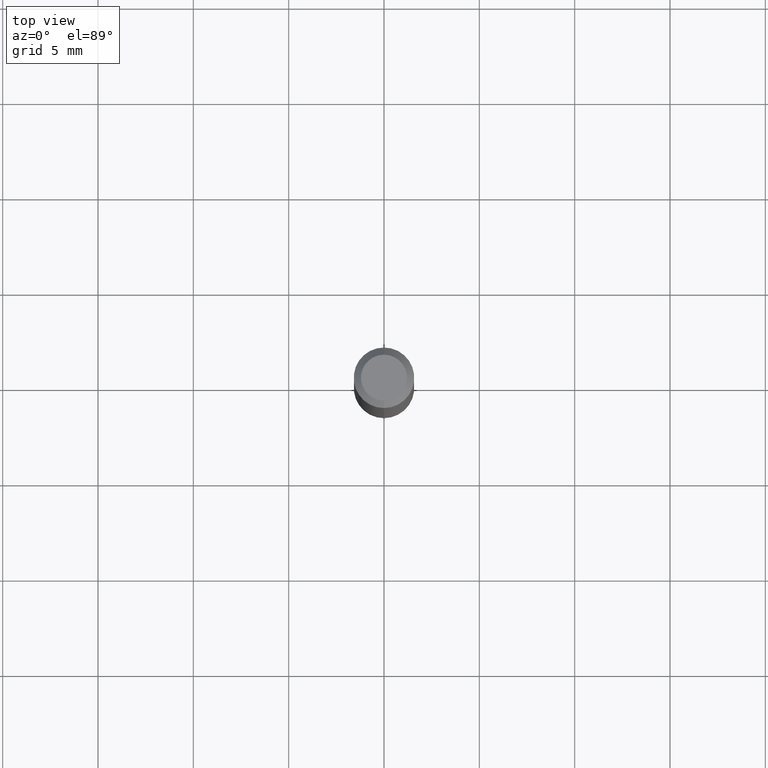
[diagram: clean part render]
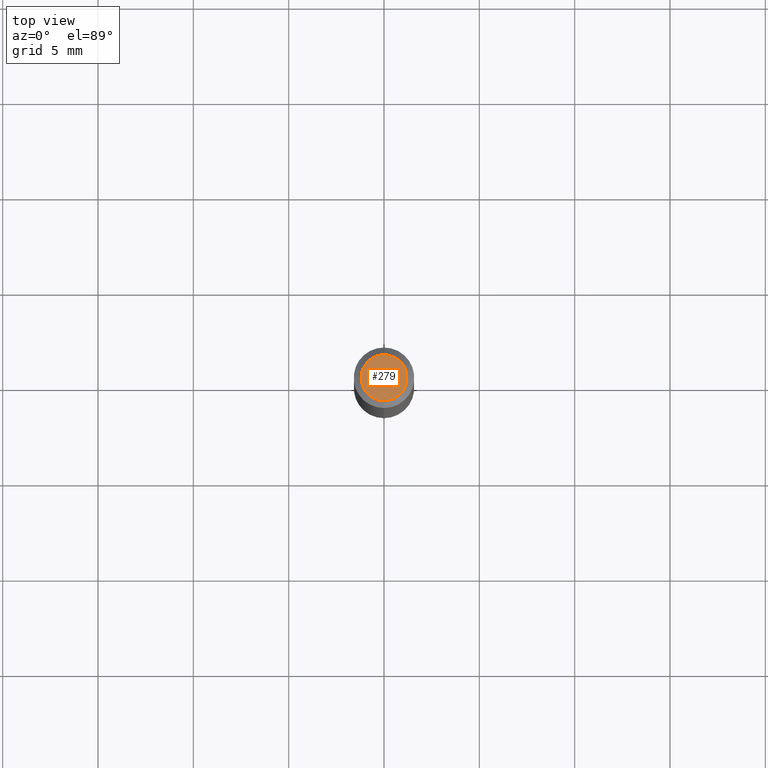
[diagram: same view with one face highlighted and labeled with its STEP entity id]
A machine part, top view. The second image highlights one B-rep face of the part: STEP entity #279.
In plain terms, the highlighted planar face has unit normal (0, -0, -1).
Its self-contained STEP definition (entity closure, byte-faithful):
#1 = FACE_OUTER_BOUND ( 'NONE', #218, .T. ) ;
#21 = AXIS2_PLACEMENT_3D ( 'NONE', #124, #359, #440 ) ;
#37 = CIRCLE ( 'NONE', #144, 0.04749999999999999362 ) ;
#88 = AXIS2_PLACEMENT_3D ( 'NONE', #112, #268, #273 ) ;
#112 = CARTESIAN_POINT ( 'NONE',  ( 3.316907271900976096E-16, 0.04749999999999999362, -4.610111489610974513E-17 ) ) ;
#124 = CARTESIAN_POINT ( 'NONE',  ( -5.856618489058153610E-45, 8.361713666201989637E-31, 2.394887879778945435E-16 ) ) ;
#126 = CARTESIAN_POINT ( 'NONE',  ( 3.840629472727447874E-16, 0.04749999999999999362, 7.364327909283752044E-17 ) ) ;
#138 = ORIENTED_EDGE ( 'NONE', *, *, #487, .T. ) ;
#139 = CARTESIAN_POINT ( 'NONE',  ( -5.856618489058153610E-45, 8.361713666201989637E-31, 2.394887879778945435E-16 ) ) ;
#144 = AXIS2_PLACEMENT_3D ( 'NONE', #139, #498, #216 ) ;
#183 = CIRCLE ( 'NONE', #21, 0.04749999999999999362 ) ;
#216 = DIRECTION ( 'NONE',  ( -6.982962677686266711E-15, -1.000000000000000000, 3.491484397580147168E-15 ) ) ;
#218 = EDGE_LOOP ( 'NONE', ( #286, #138 ) ) ;
#268 = DIRECTION ( 'NONE',  ( 2.445466670280503379E-29, -3.491484397580147957E-15, -1.000000000000000000 ) ) ;
#273 = DIRECTION ( 'NONE',  ( 6.982962677686265922E-15, 1.000000000000000000, -3.491484397580147957E-15 ) ) ;
#279 = ADVANCED_FACE ( 'NONE', ( #1 ), #508, .F. ) ;
#286 = ORIENTED_EDGE ( 'NONE', *, *, #415, .T. ) ;
#358 = VERTEX_POINT ( 'NONE', #126 ) ;
#359 = DIRECTION ( 'NONE',  ( -2.445466670280503659E-29, 3.491484397580147957E-15, 1.000000000000000000 ) ) ;
#414 = VERTEX_POINT ( 'NONE', #481 ) ;
#415 = EDGE_CURVE ( 'NONE', #358, #414, #183, .T. ) ;
#440 = DIRECTION ( 'NONE',  ( -6.982962677686266711E-15, -1.000000000000000000, 3.491484397580147168E-15 ) ) ;
#481 = CARTESIAN_POINT ( 'NONE',  ( -3.773273898774340269E-16, -0.04749999999999999362, 4.053342968629515172E-16 ) ) ;
#487 = EDGE_CURVE ( 'NONE', #414, #358, #37, .T. ) ;
#498 = DIRECTION ( 'NONE',  ( -2.445466670280503659E-29, 3.491484397580147957E-15, 1.000000000000000000 ) ) ;
#508 = PLANE ( 'NONE',  #88 ) ;